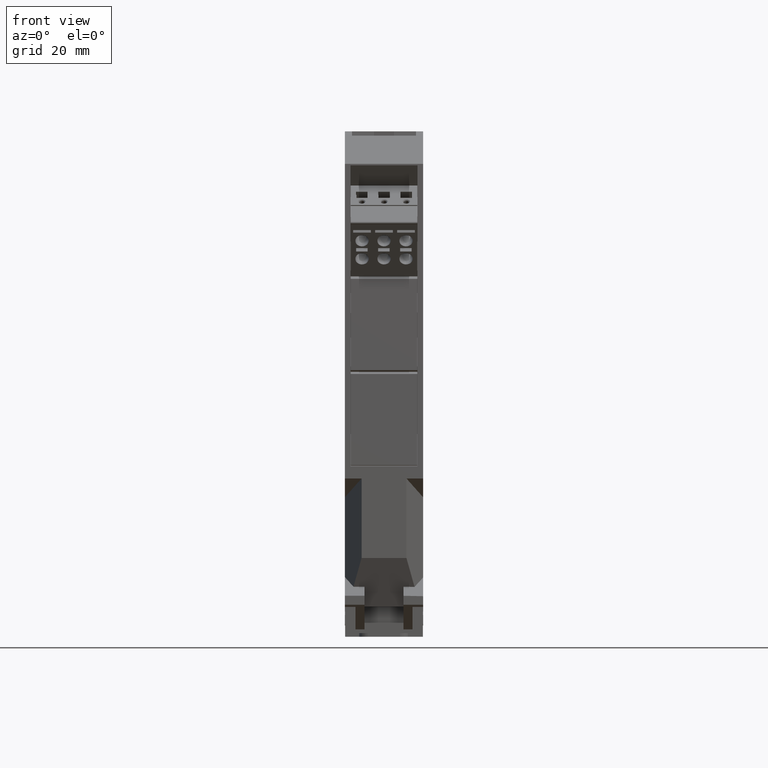
[diagram: clean part render]
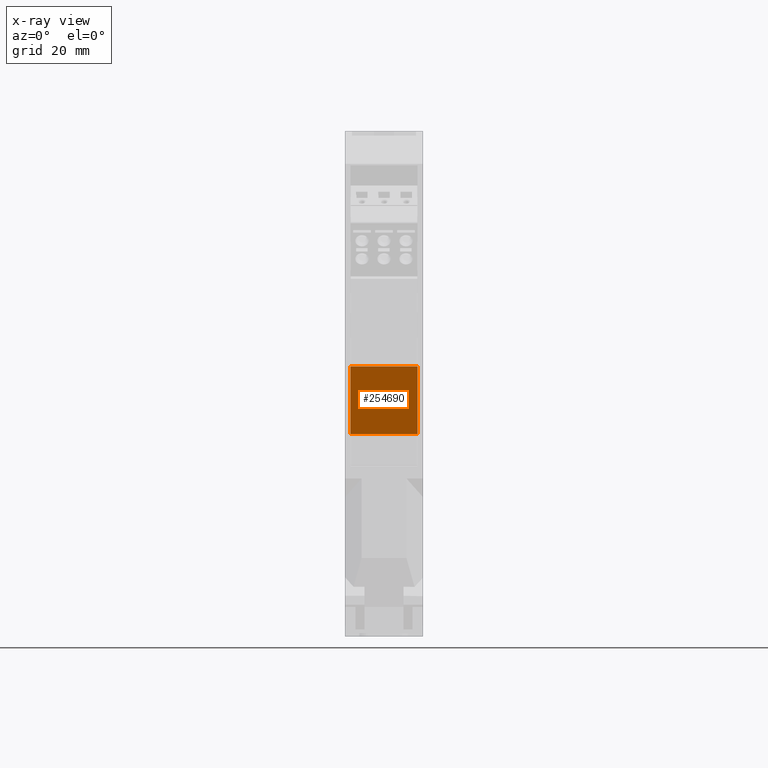
[diagram: x-ray — body ghosted, one internal face saturated and labeled with its STEP entity id]
A machine part, front view, then the same camera in x-ray: the body is ghosted and one INTERNAL B-rep face — a face not visible from any outside direction — is saturated and labeled: STEP entity #254690.
In plain terms, the highlighted planar face has unit normal (0, 0.8388, 0.5445).
Its self-contained STEP definition (entity closure, byte-faithful):
#254300=CARTESIAN_POINT('',(-4.25000077752819,8.46201219880281,
60.3216494461152));
#254310=DIRECTION('',(1.86601881517046E-16,0.838793293337917,
0.544450007853184));
#254320=DIRECTION('',(1.21120896726634E-16,0.544450007853184,
-0.838793293337917));
#254330=AXIS2_PLACEMENT_3D('',#254300,#254310,#254320);
#254340=PLANE('',#254330);
#254350=CARTESIAN_POINT('',(3.79999922312159,8.18948287980135,
60.7415149281963));
#254360=DIRECTION('',(1.,-1.5615440913072E-16,-1.02159260925297E-16));
#254370=VECTOR('',#254360,1.);
#254380=LINE('',#254350,#254370);
#254390=CARTESIAN_POINT('',(-3.75000077762564,8.18948287980135,
60.7415149281963));
#254400=VERTEX_POINT('',#254390);
#254410=CARTESIAN_POINT('',(11.3499992229375,8.18948287980134,
60.7415149281964));
#254420=VERTEX_POINT('',#254410);
#254430=EDGE_CURVE('',#254400,#254420,#254380,.T.);
#254440=ORIENTED_EDGE('',*,*,#254430,.F.);
#254450=CARTESIAN_POINT('',(11.3499992229375,77.3117643757416,
-45.7500000001035));
#254460=DIRECTION('',(6.72233639653302E-19,-0.544450007853184,
0.838793293337917));
#254470=VECTOR('',#254460,1.);
#254480=LINE('',#254450,#254470);
#254490=CARTESIAN_POINT('',(11.3499992229375,18.0537928069449,
45.5443124468881));
#254500=VERTEX_POINT('',#254490);
#254510=EDGE_CURVE('',#254500,#254420,#254480,.T.);
#254520=ORIENTED_EDGE('',*,*,#254510,.T.);
#254530=CARTESIAN_POINT('',(3.79999922312159,18.0537928069449,
45.5443124468882));
#254540=DIRECTION('',(1.,-1.5615440913072E-16,-1.02159260925297E-16));
#254550=VECTOR('',#254540,1.);
#254560=LINE('',#254530,#254550);
#254570=CARTESIAN_POINT('',(-3.75000077762564,18.0537928069449,
45.5443124468881));
#254580=VERTEX_POINT('',#254570);
#254590=EDGE_CURVE('',#254580,#254500,#254560,.T.);
#254600=ORIENTED_EDGE('',*,*,#254590,.T.);
#254610=CARTESIAN_POINT('',(-3.75000077762564,77.3117643757416,
-45.7500000001035));
#254620=DIRECTION('',(6.72233639653302E-19,-0.544450007853184,
0.838793293337917));
#254630=VECTOR('',#254620,1.);
#254640=LINE('',#254610,#254630);
#254650=EDGE_CURVE('',#254580,#254400,#254640,.T.);
#254660=ORIENTED_EDGE('',*,*,#254650,.F.);
#254670=EDGE_LOOP('',(#254660,#254600,#254520,#254440));
#254680=FACE_OUTER_BOUND('',#254670,.T.);
#254690=ADVANCED_FACE('',(#254680),#254340,.F.);